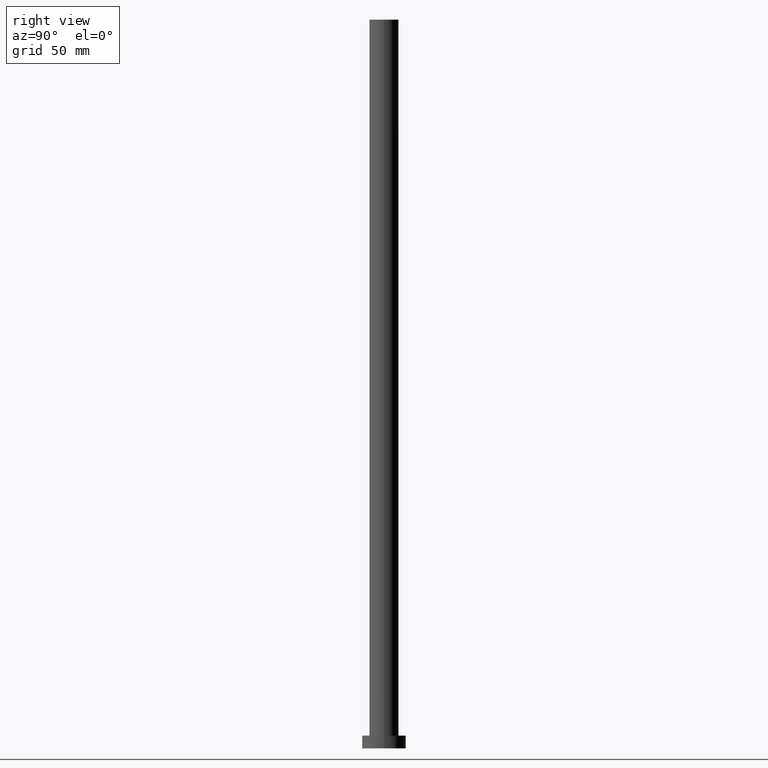
[diagram: clean part render]
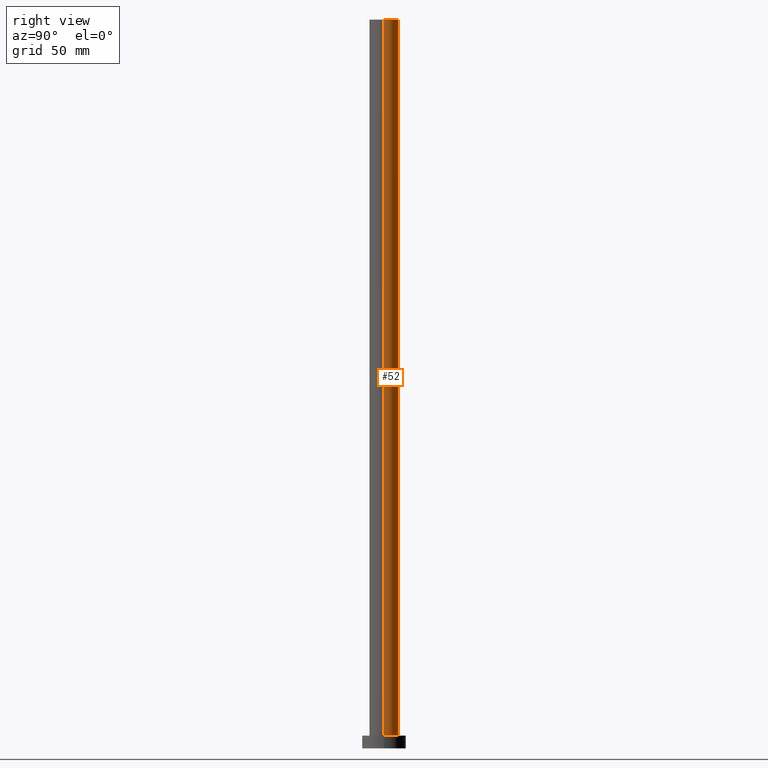
[diagram: same view with one face highlighted and labeled with its STEP entity id]
A machine part, right view. The second image highlights one B-rep face of the part: STEP entity #52.
In plain terms, the highlighted cylindrical surface (edge-blend (fillet) strip) has radius 8 mm, axis along (-0, -0, -1).
Its self-contained STEP definition (entity closure, byte-faithful):
#2 = DIRECTION ( 'NONE',  ( 1.000000000000000000, 0.000000000000000000, 0.000000000000000000 ) ) ;
#3 = CYLINDRICAL_SURFACE ( 'NONE', #87, 8.000000000000000000 ) ;
#17 = CARTESIAN_POINT ( 'NONE',  ( 0.000000000000000000, 0.000000000000000000, 400.0000000000000000 ) ) ;
#35 = AXIS2_PLACEMENT_3D ( 'NONE', #17, #91, #112 ) ;
#36 = VERTEX_POINT ( 'NONE', #97 ) ;
#46 = CARTESIAN_POINT ( 'NONE',  ( 8.000000000000000000, 9.797174393178825657E-16, 7.000000000000000000 ) ) ;
#48 = CARTESIAN_POINT ( 'NONE',  ( 0.000000000000000000, 0.000000000000000000, 400.0000000000000000 ) ) ;
#52 = ADVANCED_FACE ( 'NONE', ( #143 ), #3, .T. ) ;
#63 = DIRECTION ( 'NONE',  ( -0.000000000000000000, -0.000000000000000000, -1.000000000000000000 ) ) ;
#73 = LINE ( 'NONE', #136, #83 ) ;
#74 = EDGE_CURVE ( 'NONE', #101, #36, #197, .T. ) ;
#76 = CARTESIAN_POINT ( 'NONE',  ( 8.000000000000000000, 9.797174393178825657E-16, 400.0000000000000000 ) ) ;
#83 = VECTOR ( 'NONE', #132, 1000.000000000000000 ) ;
#85 = EDGE_LOOP ( 'NONE', ( #103, #124, #158, #242 ) ) ;
#87 = AXIS2_PLACEMENT_3D ( 'NONE', #48, #94, #254 ) ;
#91 = DIRECTION ( 'NONE',  ( 0.000000000000000000, 0.000000000000000000, 1.000000000000000000 ) ) ;
#94 = DIRECTION ( 'NONE',  ( -0.000000000000000000, -0.000000000000000000, -1.000000000000000000 ) ) ;
#97 = CARTESIAN_POINT ( 'NONE',  ( -8.000000000000000000, 0.000000000000000000, 400.0000000000000000 ) ) ;
#99 = CARTESIAN_POINT ( 'NONE',  ( 8.000000000000000000, 9.797174393178825657E-16, 400.0000000000000000 ) ) ;
#101 = VERTEX_POINT ( 'NONE', #76 ) ;
#103 = ORIENTED_EDGE ( 'NONE', *, *, #74, .F. ) ;
#112 = DIRECTION ( 'NONE',  ( 1.000000000000000000, 0.000000000000000000, 0.000000000000000000 ) ) ;
#114 = CARTESIAN_POINT ( 'NONE',  ( 0.000000000000000000, 0.000000000000000000, 7.000000000000000000 ) ) ;
#116 = LINE ( 'NONE', #99, #175 ) ;
#118 = EDGE_CURVE ( 'NONE', #218, #128, #184, .T. ) ;
#124 = ORIENTED_EDGE ( 'NONE', *, *, #233, .T. ) ;
#128 = VERTEX_POINT ( 'NONE', #169 ) ;
#132 = DIRECTION ( 'NONE',  ( -0.000000000000000000, -0.000000000000000000, -1.000000000000000000 ) ) ;
#136 = CARTESIAN_POINT ( 'NONE',  ( -8.000000000000000000, 0.000000000000000000, 400.0000000000000000 ) ) ;
#143 = FACE_OUTER_BOUND ( 'NONE', #85, .T. ) ;
#158 = ORIENTED_EDGE ( 'NONE', *, *, #118, .T. ) ;
#159 = AXIS2_PLACEMENT_3D ( 'NONE', #114, #235, #2 ) ;
#169 = CARTESIAN_POINT ( 'NONE',  ( -8.000000000000000000, 0.000000000000000000, 7.000000000000000000 ) ) ;
#175 = VECTOR ( 'NONE', #63, 1000.000000000000000 ) ;
#177 = EDGE_CURVE ( 'NONE', #36, #128, #73, .T. ) ;
#184 = CIRCLE ( 'NONE', #159, 8.000000000000000000 ) ;
#197 = CIRCLE ( 'NONE', #35, 8.000000000000000000 ) ;
#218 = VERTEX_POINT ( 'NONE', #46 ) ;
#233 = EDGE_CURVE ( 'NONE', #101, #218, #116, .T. ) ;
#235 = DIRECTION ( 'NONE',  ( 0.000000000000000000, 0.000000000000000000, 1.000000000000000000 ) ) ;
#242 = ORIENTED_EDGE ( 'NONE', *, *, #177, .F. ) ;
#254 = DIRECTION ( 'NONE',  ( -1.000000000000000000, 0.000000000000000000, 0.000000000000000000 ) ) ;